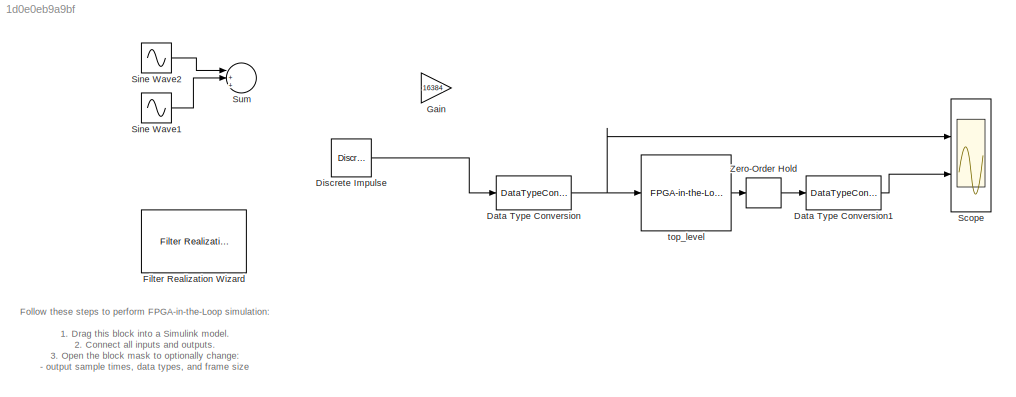
MODEL slx_1d0e0eb9a9bf
KIND model
CONFIG AbsTol = auto
CONFIG EnableMultiTasking = off
CONFIG FixedStep = 1/4000
CONFIG MaxStep = 1/4000
CONFIG MinStep = auto
CONFIG RelTol = 1e-3
CONFIG SampleTimeConstraint = Unconstrained
CONFIG Solver = FixedStepAuto
CONFIG SolverName = FixedStepAuto
CONFIG StartTime = 0.0
CONFIG StopTime = 0.1
BLOCK [DataTypeConversion] Data Type Conversion
  OutDataTypeStr = fixdt(1,32,16)
  RndMeth = Floor
  SaturateOnIntegerOverflow = off
BLOCK [DataTypeConversion] Data Type Conversion1
  OutDataTypeStr = double
  RndMeth = Floor
  SaturateOnIntegerOverflow = off
BLOCK [Reference] Discrete Impulse  REF=dspsrcs4/Discrete 
Impulse
  Ports = [0, 1]
  SourceBlock = dspsrcs4/Discrete \nImpulse
  SourceProductBaseCode = DS
  SourceProductName = DSP System Toolbox
  SourceType = Discrete Impulse
BLOCK [Reference] Filter Realization Wizard  REF=dsparch4/Filter
Realization
Wizard
  Ports = []
  SourceBlock = dsparch4/Filter\nRealization\nWizard
  SourceProductBaseCode = DS
  SourceProductName = DSP System Toolbox
  SourceType = Filter Realization Wizard
BLOCK [Gain] Gain
  Gain = 16384
  OutDataTypeStr = double
  ParamDataTypeStr = Inherit: Inherit via internal rule
  SaturateOnIntegerOverflow = off
BLOCK [Scope] Scope
  NumInputPorts = 2
  Ports = [2]
  ScopeSpecificationString = Simulink.scopes.TimeScopeBlockCfg('CurrentConfiguration', extmgr.ConfigurationSet(extmgr.Configuration('Core','General UI',true),extmgr.Configuration('Core','Source UI',true),extmgr.Configuration('Sources','WiredSimulink',true,'DataLogging',true,'DataLoggingVariableName','ScopeData2','DataLoggingSaveFormat','Structure'),extmgr.Configuration('Visuals','Time Domain',true,'SerializedDisplays',{struct...<+2096ch>
BLOCK [Sin] Sine Wave1
  Amplitude = 50
  Frequency = 500
  Ports = [0, 1]
  SampleTime = 25e-5
BLOCK [Sin] Sine Wave2
  Amplitude = 50
  Frequency = 1000
  Ports = [0, 1]
  SampleTime = 25e-5
BLOCK [Sum] Sum
  IconShape = round
  InputSameDT = off
  Inputs = |+++
  OutDataTypeStr = Inherit: Inherit via internal rule
  Ports = [3, 1]
  SaturateOnIntegerOverflow = off
BLOCK [ZeroOrderHold] Zero-Order Hold
  SampleTime = 1/4000
BLOCK [Reference] top_level  REF=fillib/FPGA-in-the-Loop (FIL)
  Ports = [1, 1]
  SourceBlock = fillib/FPGA-in-the-Loop (FIL)
  SourceType = FPGA-in-the-Loop (FIL)
  UserDataPersistent = on
ANNOTATION (root): Follow these steps to perform FPGA-in-the-Loop simulation: 1. Drag this block into a Simulink model. 2. Connect all inputs and outputs. 3. Open the block mask to optionally change: - output sample times, data types, and frame size - HDL overclocking factor Usually the mask defaults will work in your model without modification. 4. Attach the FPGA development board to your host computer (FPGA progra...<+260ch>
LINE Data Type Conversion1:1 -> Scope:2
NET Data Type Conversion:1 -> Scope:1, top_level:1
LINE Discrete Impulse:1 -> Data Type Conversion:1
LINE Sine Wave1:1 -> Sum:2
LINE Sine Wave2:1 -> Sum:1
LINE Zero-Order Hold:1 -> Data Type Conversion1:1
LINE top_level:1 -> Zero-Order Hold:1
note: NET lines group one-source signal fan-out (src -> all destinations, sorted); 1:1 wires keep LINE
